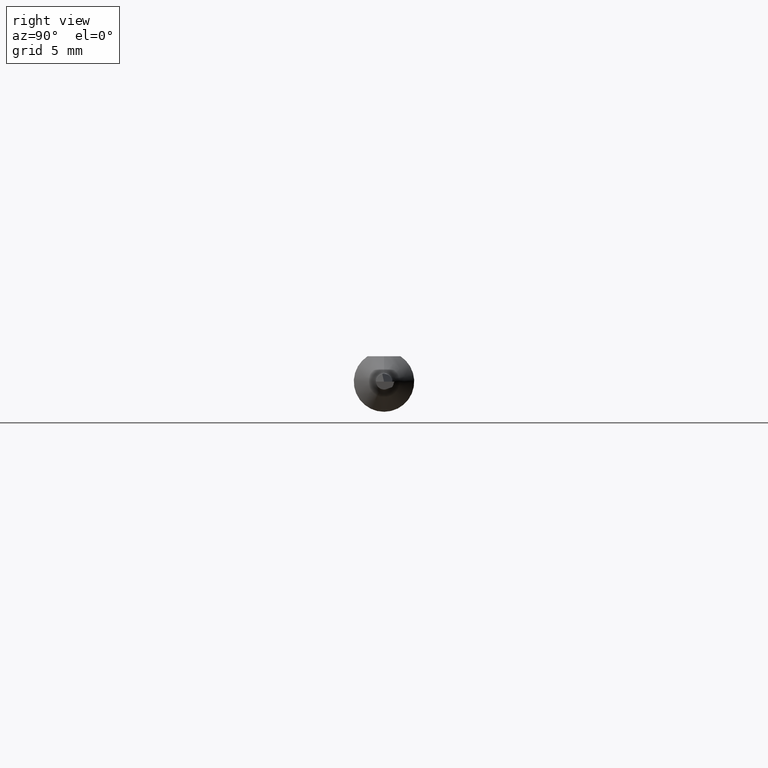
[diagram: clean part render]
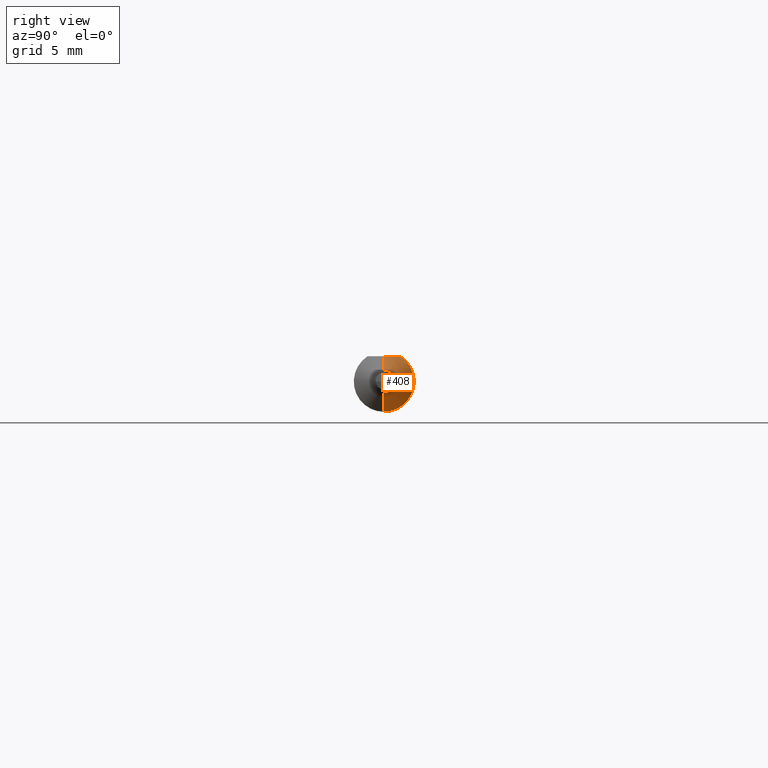
[diagram: same view with one face highlighted and labeled with its STEP entity id]
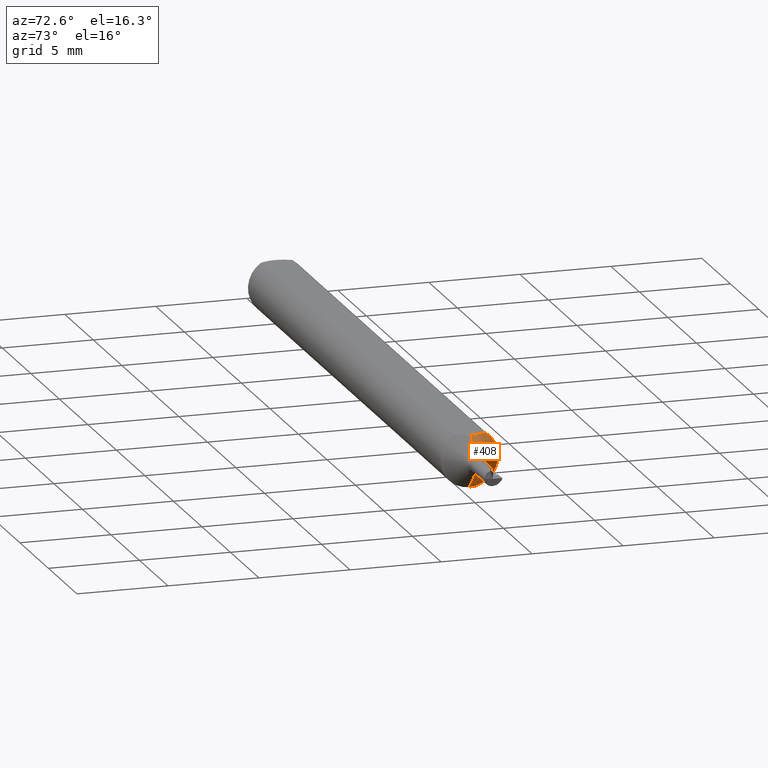
[diagram: same view with one face highlighted and labeled with its STEP entity id]
A machine part, right view. The second image highlights one B-rep face of the part: STEP entity #408.
A second angle (auxiliary view) of the same face is appended — the face is thin or edge-on in the first view.
In plain terms, the highlighted conical surface has half-angle 45 deg.
Its self-contained STEP definition (entity closure, byte-faithful):
#14 = AXIS2_PLACEMENT_3D ( 'NONE', #169, #67, #178 ) ;
#33 = VERTEX_POINT ( 'NONE', #369 ) ;
#41 = VECTOR ( 'NONE', #679, 39.37007874015748143 ) ;
#67 = DIRECTION ( 'NONE',  ( -1.000000000000000000, -0.000000000000000000, -0.000000000000000000 ) ) ;
#75 = AXIS2_PLACEMENT_3D ( 'NONE', #431, #113, #273 ) ;
#76 = DIRECTION ( 'NONE',  ( -0.7071067811865437980, 8.659560562354978464E-17, -0.7071067811865512365 ) ) ;
#93 = VERTEX_POINT ( 'NONE', #319 ) ;
#113 = DIRECTION ( 'NONE',  ( -1.000000000000000000, -0.000000000000000000, -0.000000000000000000 ) ) ;
#126 = EDGE_CURVE ( 'NONE', #231, #313, #220, .T. ) ;
#139 = VERTEX_POINT ( 'NONE', #162 ) ;
#162 = CARTESIAN_POINT ( 'NONE',  ( 1.339150000000000285, 0.03386738844375220686, 0.05235000000000000070 ) ) ;
#169 = CARTESIAN_POINT ( 'NONE',  ( 1.339150000000000285, 0.000000000000000000, 0.000000000000000000 ) ) ;
#178 = DIRECTION ( 'NONE',  ( 0.000000000000000000, 0.000000000000000000, 1.000000000000000000 ) ) ;
#183 = CARTESIAN_POINT ( 'NONE',  ( 1.377677669529663751, 2.917394075872780740E-18, -0.02382233047033629689 ) ) ;
#197 = CARTESIAN_POINT ( 'NONE',  ( 1.341993063989529666, 0.02863329606483934128, 0.05235000000000002152 ) ) ;
#220 = CIRCLE ( 'NONE', #554, 0.02382233047033627607 ) ;
#221 = FACE_OUTER_BOUND ( 'NONE', #603, .T. ) ;
#231 = VERTEX_POINT ( 'NONE', #480 ) ;
#238 = ORIENTED_EDGE ( 'NONE', *, *, #587, .F. ) ;
#242 = LINE ( 'NONE', #455, #41 ) ;
#273 = DIRECTION ( 'NONE',  ( 0.000000000000000000, 0.000000000000000000, 1.000000000000000000 ) ) ;
#313 = VERTEX_POINT ( 'NONE', #183 ) ;
#319 = CARTESIAN_POINT ( 'NONE',  ( 1.349150000000000293, -2.188256422100624130E-21, 0.05235000000000001458 ) ) ;
#369 = CARTESIAN_POINT ( 'NONE',  ( 1.339150000000000285, 7.635672792683746671E-18, -0.06234999999999999570 ) ) ;
#384 = VECTOR ( 'NONE', #76, 39.37007874015748143 ) ;
#408 = ADVANCED_FACE ( 'NONE', ( #221 ), #618, .T. ) ;
#431 = CARTESIAN_POINT ( 'NONE',  ( 1.377677669529663751, 0.000000000000000000, 0.000000000000000000 ) ) ;
#455 = CARTESIAN_POINT ( 'NONE',  ( 1.377677669529663751, 0.000000000000000000, 0.02382233047033627607 ) ) ;
#458 = CARTESIAN_POINT ( 'NONE',  ( 1.339150000000000285, 0.03386738844375220686, 0.05235000000000000070 ) ) ;
#462 = LINE ( 'NONE', #684, #384 ) ;
#466 = CARTESIAN_POINT ( 'NONE',  ( 1.349150000000000293, 0.005920875246928953770, 0.05235000000000002152 ) ) ;
#468 = EDGE_CURVE ( 'NONE', #139, #33, #651, .T. ) ;
#474 = CARTESIAN_POINT ( 'NONE',  ( 1.349150000000000293, -2.188256422100624130E-21, 0.05235000000000001458 ) ) ;
#480 = CARTESIAN_POINT ( 'NONE',  ( 1.377677669529663751, 0.000000000000000000, 0.02382233047033629689 ) ) ;
#486 = CARTESIAN_POINT ( 'NONE',  ( 1.377677669529663751, 0.000000000000000000, 0.000000000000000000 ) ) ;
#554 = AXIS2_PLACEMENT_3D ( 'NONE', #486, #653, #593 ) ;
#562 = CARTESIAN_POINT ( 'NONE',  ( 1.344488220844932691, 0.02320483992252774658, 0.05235000000000002152 ) ) ;
#571 = B_SPLINE_CURVE_WITH_KNOTS ( 'NONE', 3,
 ( #458, #197, #562, #627, #466, #474 ),
 .UNSPECIFIED., .F., .F.,
 ( 4, 2, 4 ),
 ( 0.002053575827796443130, 0.002502514900742396423, 0.002951453973688350149 ),
 .UNSPECIFIED. ) ;
#574 = ORIENTED_EDGE ( 'NONE', *, *, #468, .F. ) ;
#587 = EDGE_CURVE ( 'NONE', #231, #93, #242, .T. ) ;
#593 = DIRECTION ( 'NONE',  ( 0.000000000000000000, 0.000000000000000000, 1.000000000000000000 ) ) ;
#603 = EDGE_LOOP ( 'NONE', ( #691, #664, #574, #674, #238 ) ) ;
#615 = EDGE_CURVE ( 'NONE', #313, #33, #462, .T. ) ;
#618 = CONICAL_SURFACE ( 'NONE', #75, 0.02382233047033627607, 0.7853981633974536081 ) ;
#627 = CARTESIAN_POINT ( 'NONE',  ( 1.348078676938162301, 0.01191467125359127986, 0.05235000000000001458 ) ) ;
#651 = CIRCLE ( 'NONE', #14, 0.06235000000000000264 ) ;
#653 = DIRECTION ( 'NONE',  ( -1.000000000000000000, -0.000000000000000000, -0.000000000000000000 ) ) ;
#664 = ORIENTED_EDGE ( 'NONE', *, *, #615, .T. ) ;
#674 = ORIENTED_EDGE ( 'NONE', *, *, #702, .T. ) ;
#679 = DIRECTION ( 'NONE',  ( -0.7071067811865437980, 0.000000000000000000, 0.7071067811865512365 ) ) ;
#684 = CARTESIAN_POINT ( 'NONE',  ( 1.377677669529663751, 2.917394075872778044E-18, -0.02382233047033627607 ) ) ;
#691 = ORIENTED_EDGE ( 'NONE', *, *, #126, .T. ) ;
#702 = EDGE_CURVE ( 'NONE', #139, #93, #571, .T. ) ;